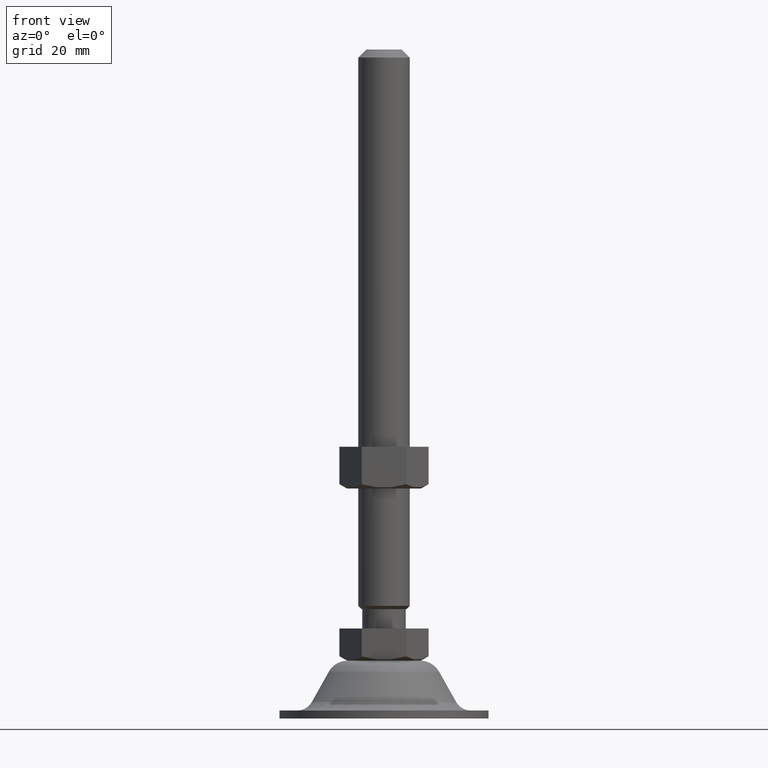
[diagram: clean part render]
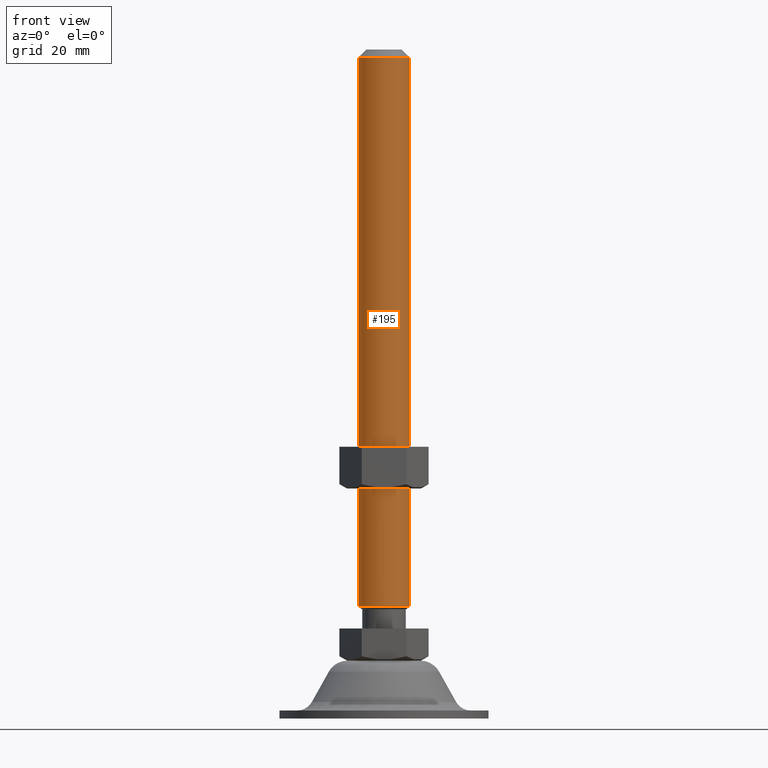
[diagram: same view with one face highlighted and labeled with its STEP entity id]
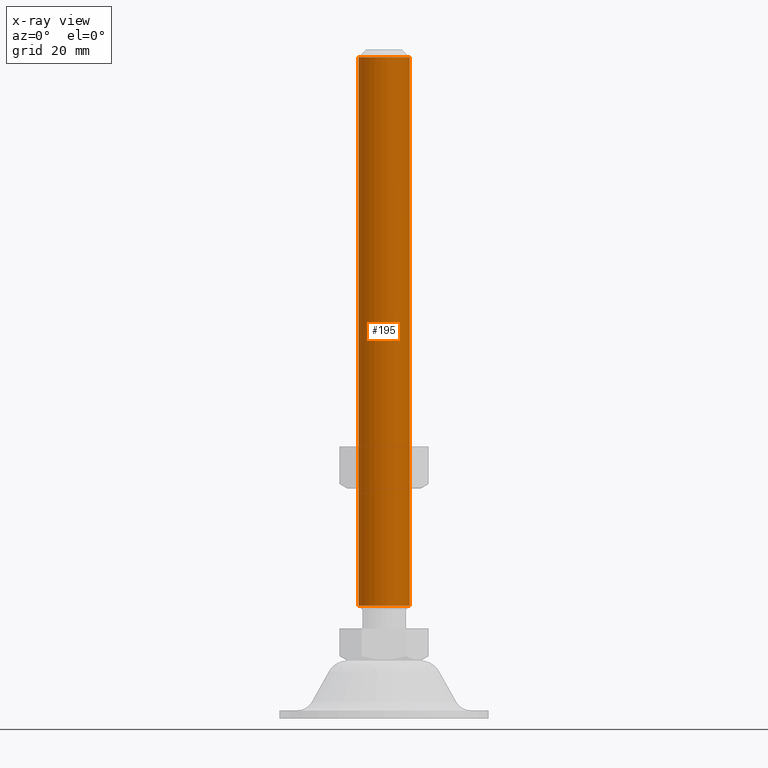
[diagram: x-ray of the same camera — body ghosted, the highlighted face saturated]
A machine part, front view. The second image highlights one B-rep face of the part: STEP entity #195.
The next image is the same camera in x-ray: the body ghosted, the highlighted face saturated — about 0% of this face is hidden behind the body in this view.
In plain terms, the highlighted cylindrical surface (edge-blend (fillet) strip) has radius 8 mm, axis along (0, 0, 1).
Its self-contained STEP definition (entity closure, byte-faithful):
#195=ADVANCED_FACE('',(#706),#705,.T.);
#705=CYLINDRICAL_SURFACE('',#1414,8.00000000017E+00);
#706=FACE_OUTER_BOUND('',#1415,.T.);
#1411=CARTESIAN_POINT('',(-3.19460013998E-11,0.00000000000E+00,0.00000000000E+00));
#1412=DIRECTION('',(0.00000000000E+00,-0.00000000000E+00,1.00000000000E+00));
#1413=DIRECTION('',(-1.00000000000E+00,1.22464679915E-16,0.00000000000E+00));
#1414=AXIS2_PLACEMENT_3D('',#1411,#1412,#1413);
#1415=EDGE_LOOP('',(#2105,#2106,#2107,#2108));
#2105=ORIENTED_EDGE('',*,*,#2417,.T.);
#2106=ORIENTED_EDGE('',*,*,#2418,.F.);
#2107=ORIENTED_EDGE('',*,*,#2419,.F.);
#2108=ORIENTED_EDGE('',*,*,#2420,.T.);
#2417=EDGE_CURVE('',#3331,#3332,#3333,.T.);
#2418=EDGE_CURVE('',#3339,#3332,#3340,.T.);
#2419=EDGE_CURVE('',#3346,#3339,#3347,.T.);
#2420=EDGE_CURVE('',#3346,#3331,#3353,.T.);
#3331=VERTEX_POINT('',#4471);
#3332=VERTEX_POINT('',#4472);
#3333=CIRCLE('',#4476,8.00000000017E+00);
#3339=VERTEX_POINT('',#4477);
#3340=(BOUNDED_CURVE() B_SPLINE_CURVE(1,(#4478,#4479),.UNSPECIFIED.,.F.,.F.) B_SPLINE_CURVE_WITH_KNOTS((2,2),(5.24934383109E-02,9.47506561558E-01),.UNSPECIFIED.) CURVE() GEOMETRIC_REPRESENTATION_ITEM() RATIONAL_B_SPLINE_CURVE((1.00000000000E+00,1.00000000000E+00)) REPRESENTATION_ITEM('') );
#3346=VERTEX_POINT('',#4480);
#3347=CIRCLE('',#4484,8.00000000007E+00);
#3353=(BOUNDED_CURVE() B_SPLINE_CURVE(1,(#4485,#4486),.UNSPECIFIED.,.F.,.F.) B_SPLINE_CURVE_WITH_KNOTS((2,2),(5.24934383572E-02,9.47506561643E-01),.UNSPECIFIED.) CURVE() GEOMETRIC_REPRESENTATION_ITEM() RATIONAL_B_SPLINE_CURVE((7.50000000000E-01,7.50000000000E-01)) REPRESENTATION_ITEM('') );
#4471=CARTESIAN_POINT('',(8.00000000014E+00,0.00000000000E+00,1.77499999866E+02));
#4472=CARTESIAN_POINT('',(-8.00000000020E+00,1.48029736617E-15,1.77499999866E+02));
#4473=CARTESIAN_POINT('',(-3.19460013998E-11,0.00000000000E+00,1.77499999866E+02));
#4474=DIRECTION('',(0.00000000000E+00,0.00000000000E+00,-1.00000000000E+00));
#4475=DIRECTION('',(1.00000000000E+00,-1.22460635382E-16,0.00000000000E+00));
#4476=AXIS2_PLACEMENT_3D('',#4473,#4474,#4475);
#4477=CARTESIAN_POINT('',(-8.00000000010E+00,0.00000000000E+00,6.99999999998E+00));
#4478=CARTESIAN_POINT('',(-8.00000000020E+00,9.79717439338E-16,6.99999999116E+00));
#4479=CARTESIAN_POINT('',(-8.00000000020E+00,9.79717439338E-16,1.77499999850E+02));
#4480=CARTESIAN_POINT('',(8.00000000004E+00,8.88178419700E-16,6.99999999998E+00));
#4481=CARTESIAN_POINT('',(-3.19460013998E-11,0.00000000000E+00,6.99999999998E+00));
#4482=DIRECTION('',(-0.00000000000E+00,0.00000000000E+00,-1.00000000000E+00));
#4483=DIRECTION('',(-1.00000000000E+00,-1.22460635382E-16,0.00000000000E+00));
#4484=AXIS2_PLACEMENT_3D('',#4481,#4482,#4483);
#4485=CARTESIAN_POINT('',(8.00000000014E+00,-8.88178419700E-16,6.99999999998E+00));
#4486=CARTESIAN_POINT('',(8.00000000014E+00,-8.88178419700E-16,1.77499999866E+02));